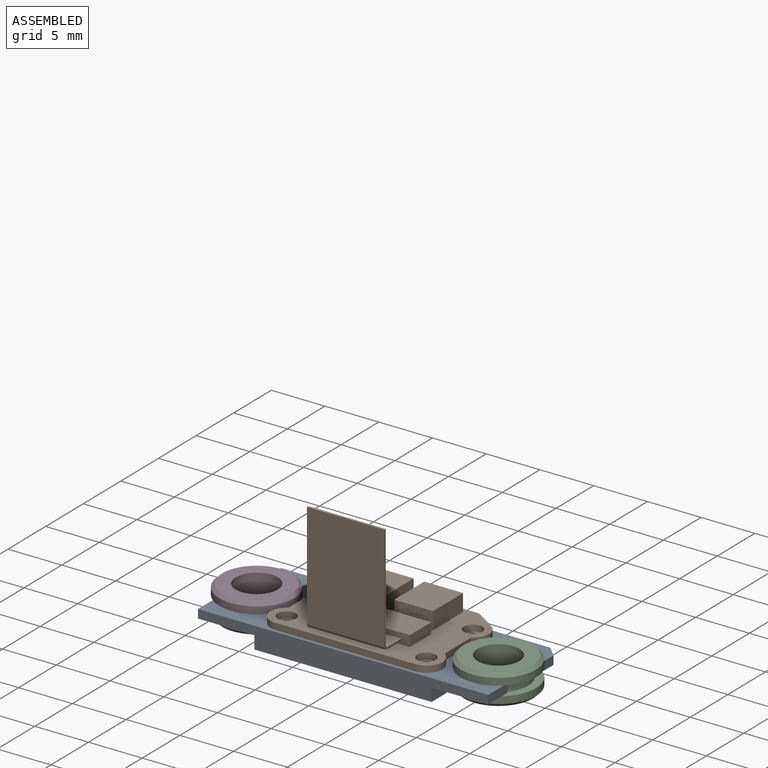
[diagram: assembled view]
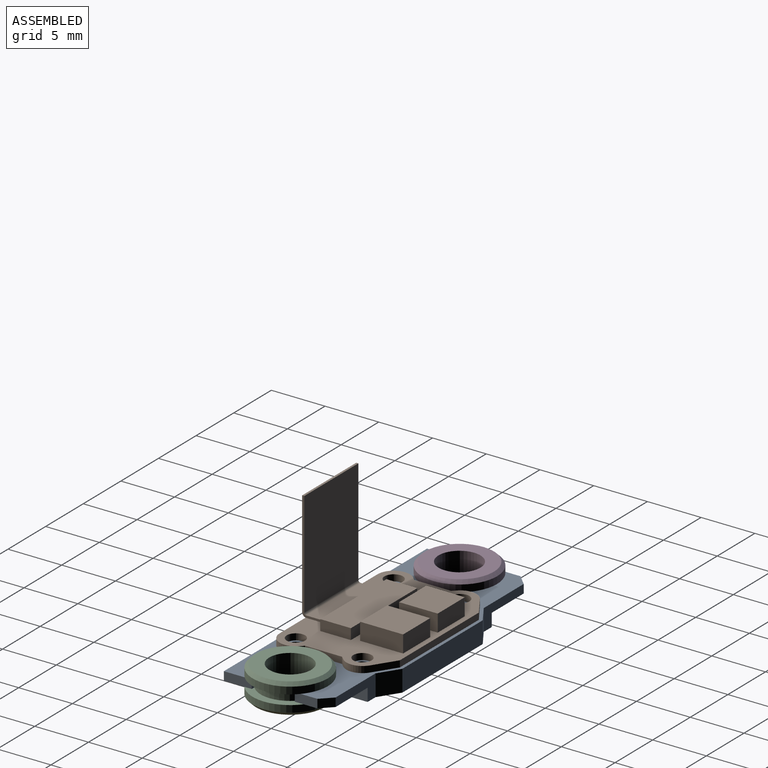
[diagram: assembled view, second angle]
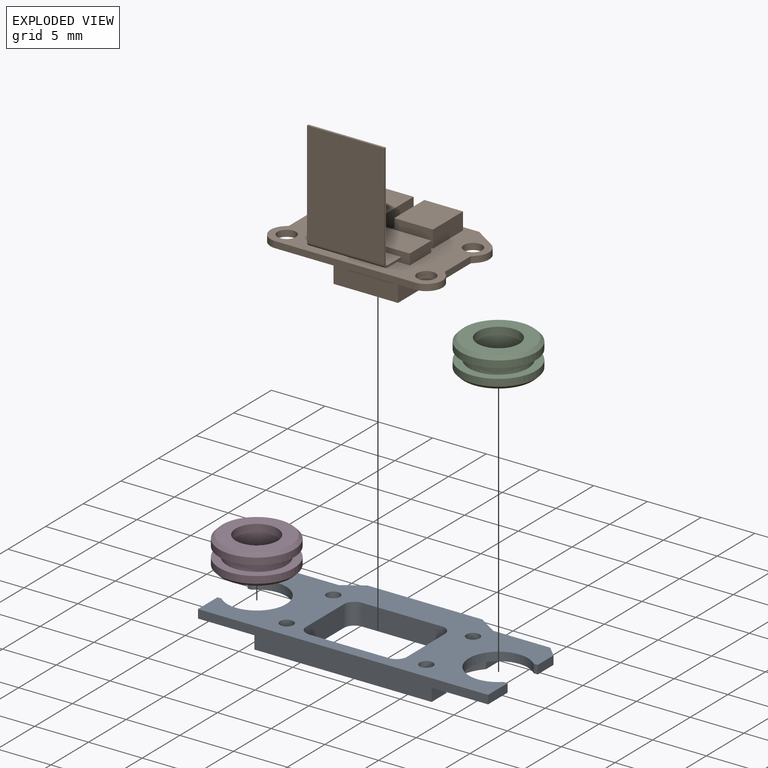
[diagram: exploded view]
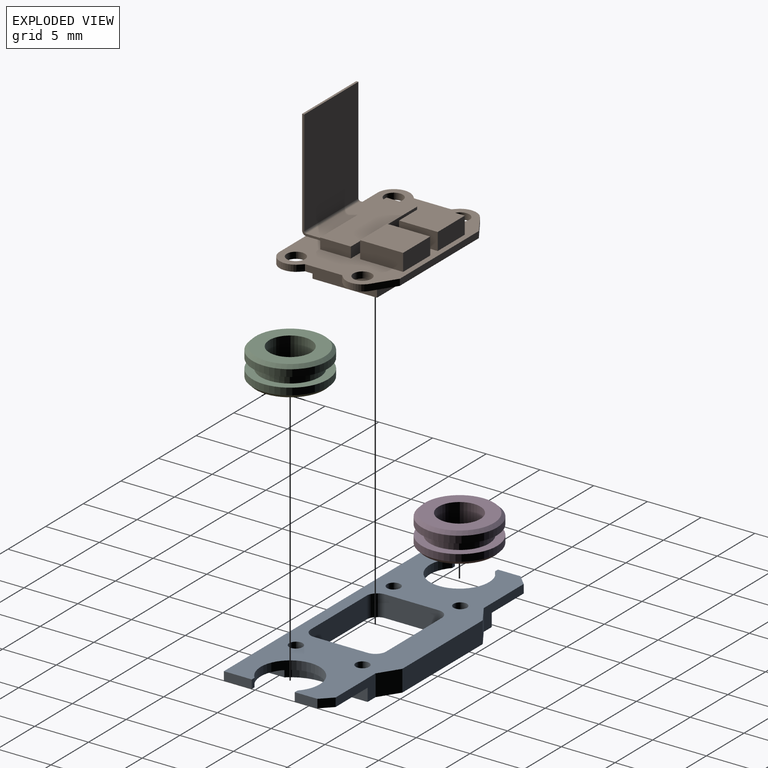
[diagram: exploded view, second angle]
ASSEMBLY  parts=4 mates=7
PART A: 40 faces, bbox 27x10.9x2 mm
  f0: plane 9.7x6.25mm, normal (0,0,-1), area 31.2mm2, adj f8,f9,f10,f11,f12,f13,f14,f15
  f1: cylinder r=1mm len=2mm, axis (0,0,-1), area 3.1mm2, adj f2,f30,f31,f39
  f2: plane 5x2mm, normal (1,0,0), area 10mm2, adj f1,f3,f31,f39
  f3: cylinder r=1mm len=2mm, axis (0,0,-1), area 3.1mm2, adj f2,f4,f31,f39
  f4: plane 7.4x2mm, normal (0,-1,0), area 14.8mm2, adj f3,f5,f31,f39
  f5: cylinder r=1mm len=2mm, axis (0,0,-1), area 3.1mm2, adj f4,f6,f31,f39
  f6: plane 5x2mm, normal (-1,0,0), area 10mm2, adj f5,f7,f31,f39
  f7: cylinder r=1mm len=2mm, axis (0,0,-1), area 3.1mm2, adj f6,f30,f31,f39
  f8: plane 27x2mm, normal (0,-1,0), area 41.4mm2, adj f0,f9,f29,f31,f32,f36,f37,f39
  f9: plane 2.6x0.8mm, normal (1,0,0), area 2.1mm2, adj f0,f8,f10,f31
  f10: plane 0.8x0.36mm, normal (0,1,0), area 0.3mm2, adj f0,f9,f11,f31
  f11: cylinder r=2.75mm len=5.5mm, axis (0,0,-1), area 10.2mm2, adj f0,f10,f12,f31
  f12: plane 0.8x0.36mm, normal (0,-1,0), area 0.3mm2, adj f0,f11,f13,f31
  f13: plane 2.1x0.8mm, normal (1,0,0), area 1.7mm2, adj f0,f12,f14,f31
  f14: plane 1x1mm, normal (0.71,0.71,0), area 1.1mm2, adj f0,f13,f15,f31
  f15: plane 5.31x2mm, normal (0,1,0), area 5.5mm2, adj f0,f14,f16,f31,f33,f39
  f16: plane 2x1.85mm, normal (0.54,0.84,0), area 4.4mm2, adj f15,f17,f31,f39
  f17: plane 10.68x2mm, normal (0,1,0), area 21.4mm2, adj f16,f18,f31,f39
  f18: plane 2x1.85mm, normal (-0.54,0.84,0), area 4.4mm2, adj f17,f19,f31,f39
  f19: plane 5.31x2mm, normal (0,1,0), area 5.5mm2, adj f18,f20,f31,f32,f34,f39
  f20: plane 1x1mm, normal (-0.71,0.71,0), area 1.1mm2, adj f19,f21,f31,f32
  f21: plane 2.1x0.8mm, normal (-1,0,0), area 1.7mm2, adj f20,f22,f31,f32
  f22: plane 0.8x0.36mm, normal (0,-1,0), area 0.3mm2, adj f21,f23,f31,f32
  f23: cylinder r=2.75mm len=5.5mm, axis (0,0,-1), area 10.2mm2, adj f22,f24,f31,f32
  f24: plane 0.8x0.36mm, normal (0,1,0), area 0.3mm2, adj f23,f29,f31,f32
  f25: cylinder r=0.62mm len=2mm, axis (0,0,-1), area 7.9mm2, adj f31,f39
  f26: cylinder r=0.62mm len=2mm, axis (0,0,-1), area 7.9mm2, adj f31,f39
  f27: cylinder r=0.62mm len=2mm, axis (0,0,-1), area 7.9mm2, adj f31,f39
  f28: cylinder r=0.62mm len=2mm, axis (0,0,-1), area 7.9mm2, adj f31,f39
  f29: plane 2.6x0.8mm, normal (-1,0,0), area 2.1mm2, adj f8,f24,f31,f32
  f30: plane 7.4x2mm, normal (0,1,0), area 14.8mm2, adj f1,f7,f31,f39
  f31: plane 27x10.9mm, normal (0,0,1), area 160.4mm2, adj f1,f2,f3,f4,f5,f6,f7,f8
  f32: plane 9.7x6.25mm, normal (0,0,-1), area 31.2mm2, adj f8,f19,f20,f21,f22,f23,f24,f29
  f33: plane 2.45x1.2mm, normal (1,0,0), area 2.9mm2, adj f0,f15,f38,f39
  f34: plane 2.45x1.2mm, normal (-1,0,0), area 2.9mm2, adj f19,f32,f35,f39
  f35: cylinder r=4mm len=5.29mm, axis (0,0,1), area 6.9mm2, adj f32,f34,f36,f39
  f36: plane 1.95x1.2mm, normal (-1,0,0), area 2.3mm2, adj f8,f32,f35,f39
  f37: plane 1.95x1.2mm, normal (1,0,0), area 2.3mm2, adj f0,f8,f38,f39
  f38: cylinder r=4mm len=5.29mm, axis (0,0,1), area 6.9mm2, adj f0,f33,f37,f39
  f39: plane 16.5x10.9mm, normal (0,0,-1), area 97.9mm2, adj f1,f2,f3,f4,f5,f6,f7,f8
PART B: 60 faces, bbox 16x10.3x13.4 mm
  f0: plane 16x10.3mm, normal (0,0,-1), area 93.9mm2, adj f2,f3,f4,f5,f6,f7,f8,f9
  f1: cylinder r=1.75mm len=3.5mm, axis (0,0,1), area 0.3mm2, adj f28,f29
  f2: plane 0.6x0.31mm, normal (-0.71,0.71,0), area 0.3mm2, adj f0,f3,f19,f20
  f3: cylinder r=1.5mm len=2.56mm, axis (0,0,-1), area 2.1mm2, adj f0,f2,f4,f20
  f4: plane 13x0.6mm, normal (0,-1,0), area 7.8mm2, adj f0,f3,f5,f20
  f5: cylinder r=1.5mm len=2.56mm, axis (0,0,-1), area 2.1mm2, adj f0,f4,f6,f20
  f6: plane 0.6x0.31mm, normal (0.71,0.71,0), area 0.3mm2, adj f0,f5,f7,f20
  f7: plane 3.46x0.6mm, normal (1,0,0), area 2.1mm2, adj f0,f6,f8,f20
  f8: plane 0.6x0.31mm, normal (0.71,-0.71,0), area 0.3mm2, adj f0,f7,f9,f20
  f9: cylinder r=1.5mm len=2.32mm, axis (0,0,-1), area 1.6mm2, adj f0,f8,f10,f20
  f10: plane 2.07x1.34mm, normal (0.54,0.84,0), area 1.5mm2, adj f0,f9,f11,f20
  f11: plane 10.5x0.6mm, normal (0,1,0), area 6.3mm2, adj f0,f10,f12,f20
  f12: plane 2.07x1.34mm, normal (-0.54,0.84,0), area 1.5mm2, adj f0,f11,f13,f20
  f13: cylinder r=1.5mm len=2.32mm, axis (0,0,-1), area 1.6mm2, adj f0,f12,f14,f20
  f14: plane 0.6x0.31mm, normal (-0.71,-0.71,0), area 0.3mm2, adj f0,f13,f19,f20
  f15: cylinder r=0.85mm len=1.7mm, axis (0,0,-1), area 3.2mm2, adj f0,f20
  f16: cylinder r=0.85mm len=1.7mm, axis (0,0,-1), area 3.2mm2, adj f0,f20
  f17: cylinder r=0.85mm len=1.7mm, axis (0,0,-1), area 3.2mm2, adj f0,f20
  f18: cylinder r=0.85mm len=1.7mm, axis (0,0,-1), area 3.2mm2, adj f0,f20
  f19: plane 3.46x0.6mm, normal (-1,0,0), area 2.1mm2, adj f0,f2,f14,f20
  f20: plane 16x10.3mm, normal (0,0,1), area 90.7mm2, adj f2,f3,f4,f5,f6,f7,f8,f9
  f21: plane 6x2.28mm, normal (-1,0,0), area 13.7mm2, adj f0,f22,f24,f28
  f22: plane 6x2.28mm, normal (0,-1,0), area 13.7mm2, adj f0,f21,f23,f28
  f23: plane 6x2.28mm, normal (1,0,0), area 13.7mm2, adj f0,f22,f24,f28
  f24: plane 6x2.28mm, normal (0,1,0), area 12.2mm2, adj f0,f21,f23,f25,f27,f28,f30
  f25: plane 1x0.3mm, normal (-1,0,0), area 0.3mm2, adj f24,f26,f28,f30
  f26: cylinder r=0.75mm len=1.5mm, axis (0,0,1), area 2.4mm2, adj f25,f27,f28,f30
  f27: plane 1x0.3mm, normal (1,0,0), area 0.3mm2, adj f24,f26,f28,f30
  f28: plane 6x6mm, normal (0,0,-1), area 25mm2, adj f1,f21,f22,f23,f24,f25,f26,f27
  f29: plane 3.5x3.5mm, normal (0,0,-1), area 9.6mm2, adj f1
  f30: plane 1.5x1.05mm, normal (0,0,-1), area 1.3mm2, adj f24,f25,f26,f27
  f31: plane 6x0.6mm, normal (1,0,0), area 3.6mm2, adj f0,f32,f34,f35
  f32: plane 2.2x0.6mm, normal (0,1,0), area 1.3mm2, adj f0,f31,f33,f35
  f33: plane 6x0.6mm, normal (-1,0,0), area 3.6mm2, adj f0,f32,f34,f35
  f34: plane 2.2x0.6mm, normal (0,-1,0), area 1.3mm2, adj f0,f31,f33,f35
  f35: plane 6x2.2mm, normal (0,0,-1), area 13.2mm2, adj f31,f32,f33,f34
  f36: plane 4x1.6mm, normal (-1,0,0), area 6.4mm2, adj f20,f37,f39,f40
  f37: plane 3.6x1.6mm, normal (0,-1,0), area 5.8mm2, adj f20,f36,f38,f40
  f38: plane 4x1.6mm, normal (1,0,0), area 6.4mm2, adj f20,f37,f39,f40
  f39: plane 3.6x1.6mm, normal (0,1,0), area 5.8mm2, adj f20,f36,f38,f40
  f40: plane 4x3.6mm, normal (0,0,1), area 14.4mm2, adj f36,f37,f38,f39
  f41: plane 3.6x1.6mm, normal (0,-1,0), area 5.8mm2, adj f20,f42,f44,f45
  f42: plane 3.6x1.6mm, normal (1,0,0), area 5.8mm2, adj f20,f41,f43,f45
  f43: plane 3.6x1.6mm, normal (0,1,0), area 5.8mm2, adj f20,f42,f44,f45
  f44: plane 3.6x1.6mm, normal (-1,0,0), area 5.8mm2, adj f20,f41,f43,f45
  f45: plane 3.6x3.6mm, normal (0,0,1), area 13mm2, adj f41,f42,f43,f44
  f46: plane 2.85x1mm, normal (-1,0,0), area 2.9mm2, adj f20,f47,f49,f50
  f47: plane 8.8x1mm, normal (0,-1,0), area 7.4mm2, adj f20,f46,f48,f50,f51,f52,f53,f54
  f48: plane 2.85x1mm, normal (1,0,0), area 2.8mm2, adj f20,f47,f49,f50
  f49: plane 8.8x1mm, normal (0,1,0), area 8.8mm2, adj f20,f46,f48,f50
  f50: plane 8.8x2.85mm, normal (0,0,1), area 25.1mm2, adj f46,f47,f48,f49
  f51: plane 7.2x1.85mm, normal (0,0,-1), area 13.3mm2, adj f47,f52,f54,f59
  f52: plane 10.2x2.25mm, normal (1,0,0), area 2.4mm2, adj f47,f51,f53,f55,f56,f57,f58,f59
  f53: plane 7.2x1.85mm, normal (0,0,1), area 13.3mm2, adj f47,f52,f54,f58
  f54: plane 10.2x2.25mm, normal (-1,0,0), area 2.4mm2, adj f47,f51,f53,f55,f56,f57,f58,f59
  f55: plane 9.8x7.2mm, normal (0,-1,0), area 70.6mm2, adj f52,f54,f57,f59
  f56: plane 9.8x7.2mm, normal (0,1,0), area 70.6mm2, adj f52,f54,f57,f58
  f57: plane 7.2x0.2mm, normal (0,0,1), area 1.4mm2, adj f52,f54,f55,f56
  f58: cylinder r=0.2mm len=7.2mm, axis (1,0,0), area 2.3mm2, adj f52,f53,f54,f56
  f59: cylinder r=0.4mm len=7.2mm, axis (-1,0,0), area 4.5mm2, adj f51,f52,f54,f55
PART C: 10 faces, bbox 7x7x2.8 mm
  f0: cylinder r=1.95mm len=3.9mm, axis (0,0,-1), area 34.3mm2, adj f3,f6
  f1: cylinder r=2.75mm len=5.5mm, axis (0,0,-1), area 15.6mm2, adj f4,f7
  f2: cylinder r=3.5mm len=7mm, axis (0,0,-1), area 14.3mm2, adj f4,f9
  f3: plane 6.4x6.4mm, normal (0,0,1), area 20.2mm2, adj f0,f9
  f4: plane 7x7mm, normal (0,0,-1), area 14.7mm2, adj f1,f2
  f5: cylinder r=3.5mm len=7mm, axis (0,0,1), area 14.3mm2, adj f7,f8
  f6: plane 6.4x6.4mm, normal (0,0,-1), area 20.2mm2, adj f0,f8
  f7: plane 7x7mm, normal (0,0,1), area 14.7mm2, adj f1,f5
  f8: cone r=3.5mm half-angle=45deg, axis (0,0,1), area 8.9mm2, adj f5,f6
  f9: cone r=3.2mm half-angle=45deg, axis (0,0,-1), area 8.9mm2, adj f2,f3
PART D: same geometry as C
PLACE A at identity fixed
PLACE B t=(0,0,0.8)mm
PLACE C t=(11.25,-0.85,0.4)mm
PLACE D t=(-11.25,-0.85,0.4)mm
MATE slider B.f9 <-> A.f28  axis (0,0,-1) through (6.5,2.55,1.4)mm
MATE slider B.f3 <-> A.f25  axis (0,0,1) through (-6.5,-3.65,1.4)mm
MATE slider A.f11 <-> C.f0  axis (0,0,-1) through (11.25,-0.85,0.4)mm
MATE planar A.f31 <-> D.f2  axis (0,0,1) through (-7.19,4.25,0.8)mm
MATE planar A.f31 <-> C.f2  axis (0,0,1) through (0.08,0.05,0.8)mm
MATE slider D.f0 <-> A.f23  axis (0,0,-1) through (-11.25,-0.85,0.4)mm
MATE planar B.f0 <-> A.f31  axis (0,0,-1) through (6.5,-5.15,0.8)mm
